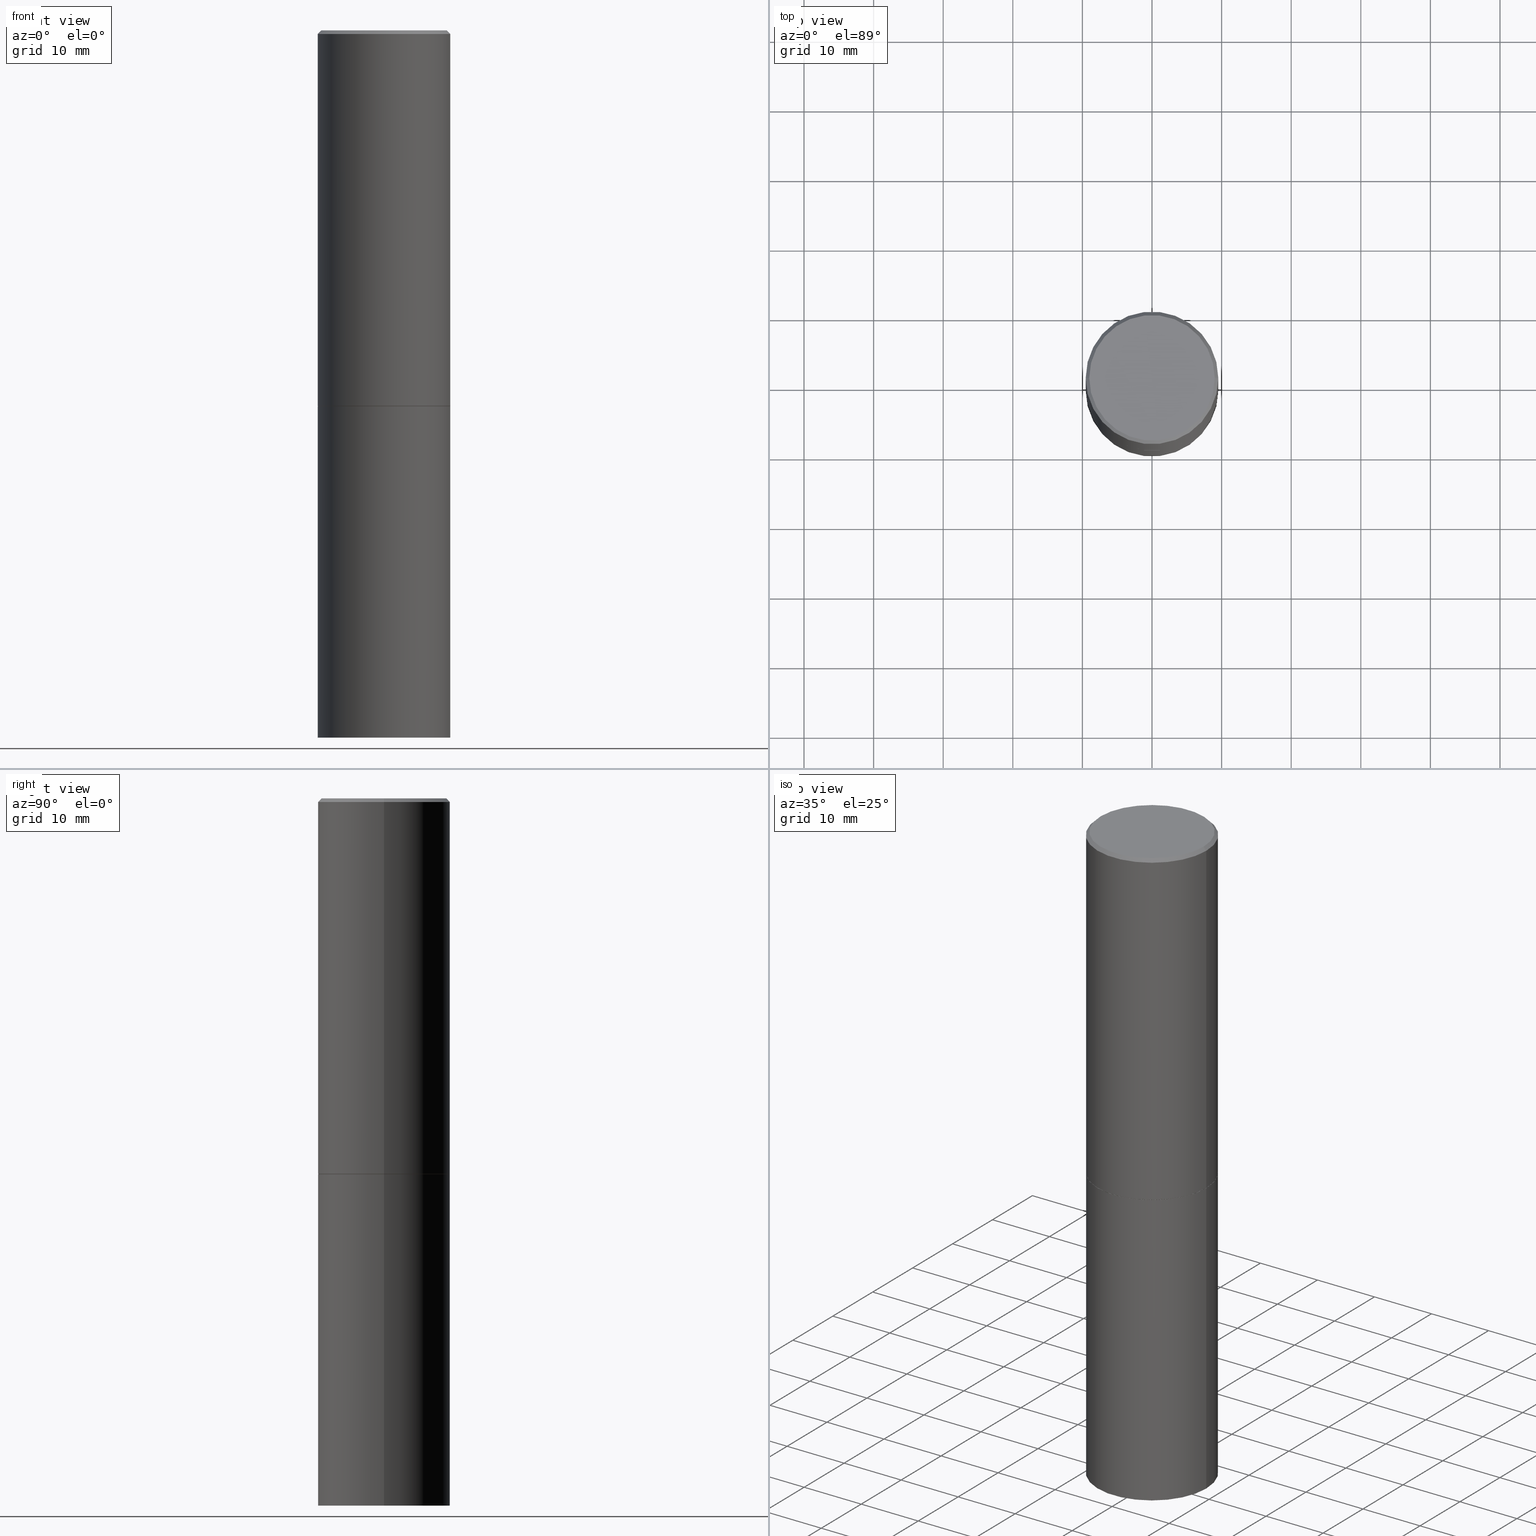
[diagram: canonical four-view strip — front | top / right | iso, engineering-drawing reading convention]
A machine part, canonical four-view strip (front | top / right | iso — engineering-drawing reading convention). The complete STEP part file that produces these views, byte-faithful:
ISO-10303-21;
HEADER;
FILE_DESCRIPTION (( 'STEP AP203' ),
    '1' );
FILE_NAME ('77247.STEP',
    '2024-02-29T17:31:24',
    ( '' ),
    ( '' ),
    'SwSTEP 2.0',
    'SolidWorks 2023',
    '' );
FILE_SCHEMA (( 'CONFIG_CONTROL_DESIGN' ));
ENDSEC;

DATA;
#1 = VECTOR ( 'NONE', #112, 39.37007874015748143 ) ;
#2 = DIRECTION ( 'NONE',  ( -2.445468806185136597E-29, 3.491481338843145583E-15, 1.000000000000000000 ) ) ;
#3 = CYLINDRICAL_SURFACE ( 'NONE', #272, 0.3750000000000000555 ) ;
#4 = EDGE_CURVE ( 'NONE', #83, #108, #168, .T. ) ;
#5 = DIMENSIONAL_EXPONENTS ( 1.000000000000000000, 0.000000000000000000, 0.000000000000000000, 0.000000000000000000, 0.000000000000000000, 0.000000000000000000, 0.000000000000000000 ) ;
#6 = SECURITY_CLASSIFICATION ( '', '', #238 ) ;
#7 = DIRECTION ( 'NONE',  ( 1.000000000000000000, -6.982962677686268288E-15, 0.000000000000000000 ) ) ;
#8 = CARTESIAN_POINT ( 'NONE',  ( -0.3750000000000000555, 2.664535259100376091E-15, -1.844600658845589598E-29 ) ) ;
#9 = ORIENTED_EDGE ( 'NONE', *, *, #135, .F. ) ;
#10 = CARTESIAN_POINT ( 'NONE',  ( 5.194175744337229665E-29, -7.415906363702840616E-15, -2.123999999999999666 ) ) ;
#11 = VECTOR ( 'NONE', #260, 39.37007874015748143 ) ;
#12 = CIRCLE ( 'NONE', #364, 0.3749999999999998335 ) ;
#13 = DIRECTION ( 'NONE',  ( -0.7071067811865459074, 2.468850131082239706E-15, -0.7071067811865492381 ) ) ;
#14 = PLANE ( 'NONE',  #223 ) ;
#15 = ORIENTED_EDGE ( 'NONE', *, *, #334, .T. ) ;
#16 = APPROVAL_DATE_TIME ( #318, #198 ) ;
#17 = FACE_OUTER_BOUND ( 'NONE', #37, .T. ) ;
#18 = ADVANCED_FACE ( 'NONE', ( #366 ), #53, .T. ) ;
#19 = ORIENTED_EDGE ( 'NONE', *, *, #361, .F. ) ;
#20 = PERSON_AND_ORGANIZATION_ROLE ( 'design_owner' ) ;
#21 = APPROVAL_PERSON_ORGANIZATION ( #348, #198, #63 ) ;
#22 = CARTESIAN_POINT ( 'NONE',  ( 9.781875224740546387E-29, -1.396592535537258233E-14, -4.000000000000000000 ) ) ;
#23 = APPROVAL ( #128, 'UNSPECIFIED' ) ;
#24 = EDGE_LOOP ( 'NONE', ( #250, #109, #173, #48 ) ) ;
#25 = EDGE_CURVE ( 'NONE', #131, #62, #186, .T. ) ;
#26 = ORIENTED_EDGE ( 'NONE', *, *, #58, .F. ) ;
#27 = CIRCLE ( 'NONE', #127, 0.3549999999999998157 ) ;
#28 = DIRECTION ( 'NONE',  ( -1.000000000000000000, 6.982962677686265922E-15, -4.876176775795935793E-29 ) ) ;
#29 = PLANE ( 'NONE',  #161 ) ;
#30 = CIRCLE ( 'NONE', #301, 0.3750000000000000555 ) ;
#31 = CC_DESIGN_PERSON_AND_ORGANIZATION_ASSIGNMENT ( #177, #124, ( #262 ) ) ;
#32 = AXIS2_PLACEMENT_3D ( 'NONE', #115, #342, #254 ) ;
#33 = DIRECTION ( 'NONE',  ( -2.445468806185136597E-29, 3.491481338843145583E-15, 1.000000000000000000 ) ) ;
#34 = CARTESIAN_POINT ( 'NONE',  ( 5.196621213143414147E-29, -7.419397845041682046E-15, -2.124999999999999556 ) ) ;
#35 = AXIS2_PLACEMENT_3D ( 'NONE', #182, #43, #119 ) ;
#36 = LINE ( 'NONE', #282, #1 ) ;
#37 = EDGE_LOOP ( 'NONE', ( #117, #101 ) ) ;
#38 = DATE_TIME_ROLE ( 'creation_date' ) ;
#39 = DIRECTION ( 'NONE',  ( 1.000000000000000000, -6.982962677686264344E-15, 0.000000000000000000 ) ) ;
#40 = LINE ( 'NONE', #148, #11 ) ;
#41 = AXIS2_PLACEMENT_3D ( 'NONE', #64, #144, #104 ) ;
#42 = PERSON_AND_ORGANIZATION_ROLE ( 'creator' ) ;
#43 = DIRECTION ( 'NONE',  ( -2.445468806185136597E-29, 3.491481338843145583E-15, 1.000000000000000000 ) ) ;
#44 = VERTEX_POINT ( 'NONE', #299 ) ;
#45 = PERSON_AND_ORGANIZATION_ROLE ( 'design_supplier' ) ;
#46 = EDGE_CURVE ( 'NONE', #142, #68, #30, .T. ) ;
#47 = APPROVAL_STATUS ( 'not_yet_approved' ) ;
#48 = ORIENTED_EDGE ( 'NONE', *, *, #288, .T. ) ;
#49 = PRODUCT_DEFINITION_SHAPE ( 'NONE', 'NONE',  #225 ) ;
#50 = VERTEX_POINT ( 'NONE', #213 ) ;
#51 = ORIENTED_EDGE ( 'NONE', *, *, #4, .T. ) ;
#52 = CC_DESIGN_PERSON_AND_ORGANIZATION_ASSIGNMENT ( #289, #42, ( #225 ) ) ;
#53 = PLANE ( 'NONE',  #57 ) ;
#54 = DIRECTION ( 'NONE',  ( 1.000000000000000000, -6.982962677686266711E-15, 0.000000000000000000 ) ) ;
#55 = ADVANCED_FACE ( 'NONE', ( #106 ), #76, .T. ) ;
#56 = DIRECTION ( 'NONE',  ( -2.445468806185136877E-29, 3.491481338843145188E-15, 1.000000000000000000 ) ) ;
#57 = AXIS2_PLACEMENT_3D ( 'NONE', #187, #158, #28 ) ;
#58 = EDGE_CURVE ( 'NONE', #131, #50, #329, .T. ) ;
#59 = DIRECTION ( 'NONE',  ( -2.445468806185136877E-29, 3.491481338843145188E-15, 1.000000000000000000 ) ) ;
#60 = DIRECTION ( 'NONE',  ( -2.445468806185136597E-29, 3.491481338843145583E-15, 1.000000000000000000 ) ) ;
#61 = LOCAL_TIME ( 12, 31, 24.00000000000000000, #118 ) ;
#62 = VERTEX_POINT ( 'NONE', #316 ) ;
#63 = APPROVAL_ROLE ( '' ) ;
#64 = CARTESIAN_POINT ( 'NONE',  ( 0.000000000000000000, 0.000000000000000000, 0.000000000000000000 ) ) ;
#65 = ORIENTED_EDGE ( 'NONE', *, *, #167, .T. ) ;
#66 = DIRECTION ( 'NONE',  ( 1.000000000000000000, 0.000000000000000000, 0.000000000000000000 ) ) ;
#67 = CARTESIAN_POINT ( 'NONE',  ( -0.3749999999999998335, 2.548781377355485141E-15, -0.02000000000000008021 ) ) ;
#68 = VERTEX_POINT ( 'NONE', #153 ) ;
#69 = AXIS2_PLACEMENT_3D ( 'NONE', #321, #73, #298 ) ;
#70 = CALENDAR_DATE ( 2024, 29, 2 ) ;
#71 = CARTESIAN_POINT ( 'NONE',  ( -0.3739999999999999991, -4.761968013298907357E-15, -2.124999999999999556 ) ) ;
#72 = COORDINATED_UNIVERSAL_TIME_OFFSET ( 5, 0, .BEHIND. ) ;
#73 = DIRECTION ( 'NONE',  ( -2.445468806185136597E-29, 3.491481338843145583E-15, 1.000000000000000000 ) ) ;
#74 = ORIENTED_EDGE ( 'NONE', *, *, #202, .T. ) ;
#75 = DIRECTION ( 'NONE',  ( -2.445468806185136597E-29, 3.491481338843145583E-15, 1.000000000000000000 ) ) ;
#76 = CYLINDRICAL_SURFACE ( 'NONE', #346, 0.3749999999999999445 ) ;
#77 = CIRCLE ( 'NONE', #279, 0.3739999999999999991 ) ;
#78 = ADVANCED_FACE ( 'NONE', ( #103 ), #347, .F. ) ;
#79 = ORIENTED_EDGE ( 'NONE', *, *, #350, .T. ) ;
#80 = PERSON ( 'UNSPECIFIED', 'UNSPECIFIED', 'UNSPECIFIED', ('UNSPECIFIED'), ('UNSPECIFIED'), ('UNSPECIFIED') ) ;
#81 = EDGE_LOOP ( 'NONE', ( #363, #300, #188, #183 ) ) ;
#82 = CC_DESIGN_PERSON_AND_ORGANIZATION_ASSIGNMENT ( #286, #20, ( #303 ) ) ;
#83 = VERTEX_POINT ( 'NONE', #201 ) ;
#84 = EDGE_CURVE ( 'NONE', #108, #83, #338, .T. ) ;
#85 = CONICAL_SURFACE ( 'NONE', #32, 0.3739999999999999991, 0.7853981633976190313 ) ;
#86 = DIRECTION ( 'NONE',  ( 1.000000000000000000, -6.982962677686265922E-15, 0.000000000000000000 ) ) ;
#87 = ADVANCED_FACE ( 'NONE', ( #319 ), #270, .T. ) ;
#88 = CARTESIAN_POINT ( 'NONE',  ( 0.3749999999999998335, -2.642516375941186451E-15, -0.02000000000000008021 ) ) ;
#89 = CONICAL_SURFACE ( 'NONE', #155, 0.3749999999999998335, 0.7853981633974459475 ) ;
#90 = FACE_OUTER_BOUND ( 'NONE', #219, .T. ) ;
#91 =( LENGTH_UNIT ( ) NAMED_UNIT ( * ) SI_UNIT ( $, .METRE. ) );
#92 = DATE_AND_TIME ( #320, #61 ) ;
#93 = VERTEX_POINT ( 'NONE', #175 ) ;
#94 = AXIS2_PLACEMENT_3D ( 'NONE', #333, #271, #132 ) ;
#95 = LOCAL_TIME ( 12, 31, 24.00000000000000000, #72 ) ;
#96 = DATE_AND_TIME ( #345, #292 ) ;
#97 = CC_DESIGN_PERSON_AND_ORGANIZATION_ASSIGNMENT ( #102, #210, ( #6 ) ) ;
#98 = ORIENTED_EDGE ( 'NONE', *, *, #365, .F. ) ;
#99 = APPROVAL_STATUS ( 'not_yet_approved' ) ;
#100 = DIRECTION ( 'NONE',  ( 1.000000000000000000, -6.982962677686266711E-15, 0.000000000000000000 ) ) ;
#101 = ORIENTED_EDGE ( 'NONE', *, *, #135, .T. ) ;
#102 = PERSON_AND_ORGANIZATION ( #80, #111 ) ;
#103 = FACE_OUTER_BOUND ( 'NONE', #273, .T. ) ;
#104 = DIRECTION ( 'NONE',  ( 1.000000000000000000, -6.982962677686266711E-15, 4.876176775795935793E-29 ) ) ;
#105 = DIRECTION ( 'NONE',  ( 1.000000000000000000, -6.982962677686266711E-15, 0.000000000000000000 ) ) ;
#106 = FACE_OUTER_BOUND ( 'NONE', #81, .T. ) ;
#107 = LOCAL_TIME ( 12, 31, 24.00000000000000000, #325 ) ;
#108 = VERTEX_POINT ( 'NONE', #172 ) ;
#109 = ORIENTED_EDGE ( 'NONE', *, *, #25, .F. ) ;
#110 = CLOSED_SHELL ( 'NONE', ( #246, #55, #313, #166, #87, #332, #341, #181 ) ) ;
#111 = ORGANIZATION ( 'UNSPECIFIED', 'UNSPECIFIED', '' ) ;
#112 = DIRECTION ( 'NONE',  ( 0.7071067811866682540, -2.468850131083521605E-15, 0.7071067811864267805 ) ) ;
#113 = FACE_OUTER_BOUND ( 'NONE', #226, .T. ) ;
#114 = DIRECTION ( 'NONE',  ( 0.7071067811865459074, -7.319954787623251312E-15, -0.7071067811865492381 ) ) ;
#115 = CARTESIAN_POINT ( 'NONE',  ( 5.196621213143414147E-29, -7.419397845041682046E-15, -2.124999999999999556 ) ) ;
#116 = APPLICATION_CONTEXT ( 'configuration controlled 3d designs of mechanical parts and assemblies' ) ;
#117 = ORIENTED_EDGE ( 'NONE', *, *, #25, .T. ) ;
#118 = COORDINATED_UNIVERSAL_TIME_OFFSET ( 5, 0, .BEHIND. ) ;
#119 = DIRECTION ( 'NONE',  ( 1.000000000000000000, -6.982962677686265922E-15, 4.876176775795935793E-29 ) ) ;
#120 = CIRCLE ( 'NONE', #217, 0.3749999999999998335 ) ;
#121 =( CONVERSION_BASED_UNIT ( 'INCH', #351 ) LENGTH_UNIT ( ) NAMED_UNIT ( #5 ) );
#122 = ADVANCED_FACE ( 'NONE', ( #266 ), #178, .T. ) ;
#123 = DIRECTION ( 'NONE',  ( -1.000000000000000000, 6.982962677686265922E-15, -4.876176775795935793E-29 ) ) ;
#124 = PERSON_AND_ORGANIZATION_ROLE ( 'creator' ) ;
#125 = CARTESIAN_POINT ( 'NONE',  ( 4.890937612370293302E-31, -6.982962677686318726E-17, -0.02000000000000008021 ) ) ;
#126 = ORIENTED_EDGE ( 'NONE', *, *, #236, .F. ) ;
#127 = AXIS2_PLACEMENT_3D ( 'NONE', #207, #290, #211 ) ;
#128 = APPROVAL_STATUS ( 'not_yet_approved' ) ;
#129 = CIRCLE ( 'NONE', #355, 0.3739999999999999991 ) ;
#130 = DIRECTION ( 'NONE',  ( 2.438088387897960049E-29, -3.491481338843145188E-15, -1.000000000000000000 ) ) ;
#131 = VERTEX_POINT ( 'NONE', #184 ) ;
#132 = DIRECTION ( 'NONE',  ( 1.000000000000000000, -6.982962677686264344E-15, 0.000000000000000000 ) ) ;
#133 = VERTEX_POINT ( 'NONE', #258 ) ;
#134 = CC_DESIGN_APPROVAL ( #242, ( #6 ) ) ;
#135 = EDGE_CURVE ( 'NONE', #62, #131, #27, .T. ) ;
#136 = EDGE_LOOP ( 'NONE', ( #9, #15, #79, #26 ) ) ;
#137 = DIRECTION ( 'NONE',  ( -2.445468806185136877E-29, 3.491481338843145188E-15, 1.000000000000000000 ) ) ;
#138 = DIRECTION ( 'NONE',  ( -2.445468806185136597E-29, 3.491481338843145583E-15, 1.000000000000000000 ) ) ;
#139 = DIRECTION ( 'NONE',  ( -2.445468806185136597E-29, 3.491481338843145583E-15, 1.000000000000000000 ) ) ;
#140 =( GEOMETRIC_REPRESENTATION_CONTEXT ( 3 ) GLOBAL_UNCERTAINTY_ASSIGNED_CONTEXT ( ( #344 ) ) GLOBAL_UNIT_ASSIGNED_CONTEXT ( ( #121, #199, #147 ) ) REPRESENTATION_CONTEXT ( 'NONE', 'WORKASPACE' ) );
#141 = DIRECTION ( 'NONE',  ( 1.000000000000000000, -6.982962677686268288E-15, 0.000000000000000000 ) ) ;
#142 = VERTEX_POINT ( 'NONE', #287 ) ;
#143 = APPROVAL_DATE_TIME ( #92, #23 ) ;
#144 = DIRECTION ( 'NONE',  ( -2.445468806185136597E-29, 3.491481338843145583E-15, 1.000000000000000000 ) ) ;
#145 = APPLICATION_CONTEXT ( 'configuration controlled 3d designs of mechanical parts and assemblies' ) ;
#146 = EDGE_CURVE ( 'NONE', #108, #133, #40, .T. ) ;
#147 =( NAMED_UNIT ( * ) SI_UNIT ( $, .STERADIAN. ) SOLID_ANGLE_UNIT ( ) );
#148 = CARTESIAN_POINT ( 'NONE',  ( 0.3749999999999999445, -2.618611004132349622E-15, 1.828566290923475642E-29 ) ) ;
#149 = APPROVAL_ROLE ( '' ) ;
#150 = DIRECTION ( 'NONE',  ( -2.445468806185136597E-29, 3.491481338843145583E-15, 1.000000000000000000 ) ) ;
#151 = APPLICATION_PROTOCOL_DEFINITION ( 'international standard', 'config_control_design', 1994, #145 ) ;
#152 = APPROVAL_ROLE ( '' ) ;
#153 = CARTESIAN_POINT ( 'NONE',  ( -0.3750000000000000555, -8.028126341106757280E-15, -4.000000000000000000 ) ) ;
#154 = EDGE_LOOP ( 'NONE', ( #179, #324, #304, #259 ) ) ;
#155 = AXIS2_PLACEMENT_3D ( 'NONE', #256, #336, #162 ) ;
#156 = ORIENTED_EDGE ( 'NONE', *, *, #46, .F. ) ;
#157 = CARTESIAN_POINT ( 'NONE',  ( -1.043851414335219820E-46, 1.490343170380447200E-32, 4.268512490100411279E-18 ) ) ;
#158 = DIRECTION ( 'NONE',  ( 2.438088387897960049E-29, -3.491481338843145188E-15, -1.000000000000000000 ) ) ;
#159 = VECTOR ( 'NONE', #13, 39.37007874015748143 ) ;
#160 = CC_DESIGN_PERSON_AND_ORGANIZATION_ASSIGNMENT ( #294, #45, ( #262 ) ) ;
#161 = AXIS2_PLACEMENT_3D ( 'NONE', #337, #340, #284 ) ;
#162 = DIRECTION ( 'NONE',  ( -1.000000000000000000, 6.982962677686265922E-15, 0.000000000000000000 ) ) ;
#163 = LINE ( 'NONE', #281, #253 ) ;
#164 = CC_DESIGN_DATE_AND_TIME_ASSIGNMENT ( #180, #297, ( #6 ) ) ;
#165 = CARTESIAN_POINT ( 'NONE',  ( 4.890937612370293302E-31, -6.982962677686318726E-17, -0.02000000000000008021 ) ) ;
#166 = ADVANCED_FACE ( 'NONE', ( #243 ), #241, .T. ) ;
#167 = EDGE_CURVE ( 'NONE', #358, #83, #326, .T. ) ;
#168 = CIRCLE ( 'NONE', #94, 0.3750000000000001665 ) ;
#169 = AXIS2_PLACEMENT_3D ( 'NONE', #170, #265, #66 ) ;
#170 = CARTESIAN_POINT ( 'NONE',  ( 0.000000000000000000, 0.000000000000000000, 0.000000000000000000 ) ) ;
#171 = DATE_AND_TIME ( #70, #95 ) ;
#172 = CARTESIAN_POINT ( 'NONE',  ( 0.3750000000000001665, -1.003451736783519063E-14, -2.123999999999999666 ) ) ;
#173 = ORIENTED_EDGE ( 'NONE', *, *, #58, .T. ) ;
#174 = EDGE_CURVE ( 'NONE', #358, #93, #77, .T. ) ;
#175 = CARTESIAN_POINT ( 'NONE',  ( 0.3739999999999999991, -1.003102588649634605E-14, -2.124999999999999556 ) ) ;
#176 = AXIS2_PLACEMENT_3D ( 'NONE', #125, #295, #357 ) ;
#177 = PERSON_AND_ORGANIZATION ( #80, #111 ) ;
#178 = CYLINDRICAL_SURFACE ( 'NONE', #35, 0.3750000000000000555 ) ;
#179 = ORIENTED_EDGE ( 'NONE', *, *, #46, .T. ) ;
#180 = DATE_AND_TIME ( #200, #107 ) ;
#181 = ADVANCED_FACE ( 'NONE', ( #17 ), #14, .F. ) ;
#182 = CARTESIAN_POINT ( 'NONE',  ( 0.000000000000000000, 0.000000000000000000, 0.000000000000000000 ) ) ;
#183 = ORIENTED_EDGE ( 'NONE', *, *, #146, .F. ) ;
#184 = CARTESIAN_POINT ( 'NONE',  ( -0.3549999999999998157, 2.513866563967054675E-15, 4.268512490082953109E-18 ) ) ;
#185 = DIRECTION ( 'NONE',  ( -2.445468806185136597E-29, 3.491481338843145583E-15, 1.000000000000000000 ) ) ;
#186 = CIRCLE ( 'NONE', #308, 0.3549999999999998157 ) ;
#187 = CARTESIAN_POINT ( 'NONE',  ( 2.618611004132448230E-15, 0.3749999999999861222, -4.000000000000000888 ) ) ;
#188 = ORIENTED_EDGE ( 'NONE', *, *, #350, .F. ) ;
#189 = ADVANCED_BREP_SHAPE_REPRESENTATION ( '77247', ( #227, #353, #169 ), #140 ) ;
#190 = DIRECTION ( 'NONE',  ( 1.000000000000000000, -6.982962677686266711E-15, 4.876231632511990425E-29 ) ) ;
#191 = APPROVAL_PERSON_ORGANIZATION ( #228, #242, #152 ) ;
#192 = LINE ( 'NONE', #8, #335 ) ;
#193 = LINE ( 'NONE', #88, #209 ) ;
#194 = EDGE_CURVE ( 'NONE', #68, #142, #330, .T. ) ;
#195 = CARTESIAN_POINT ( 'NONE',  ( -0.3739999999999999991, -4.756669558950685744E-15, -2.124999999999999556 ) ) ;
#196 = AXIS2_PLACEMENT_3D ( 'NONE', #349, #130, #123 ) ;
#197 = CARTESIAN_POINT ( 'NONE',  ( 5.196621213143415268E-29, -7.419397845041683624E-15, -2.125000000000000000 ) ) ;
#198 = APPROVAL ( #99, 'UNSPECIFIED' ) ;
#199 =( NAMED_UNIT ( * ) PLANE_ANGLE_UNIT ( ) SI_UNIT ( $, .RADIAN. ) );
#200 = CALENDAR_DATE ( 2024, 29, 2 ) ;
#201 = CARTESIAN_POINT ( 'NONE',  ( -0.3750000000000001110, -1.078332736139473696E-15, -2.123999999999999666 ) ) ;
#202 = EDGE_CURVE ( 'NONE', #240, #44, #248, .T. ) ;
#203 = ORIENTED_EDGE ( 'NONE', *, *, #288, .F. ) ;
#204 = CALENDAR_DATE ( 2024, 29, 2 ) ;
#205 = ORIENTED_EDGE ( 'NONE', *, *, #307, .T. ) ;
#206 = PERSON_AND_ORGANIZATION ( #80, #111 ) ;
#207 = CARTESIAN_POINT ( 'NONE',  ( -1.043851414335219820E-46, 1.490343170380447200E-32, 4.268512490100411279E-18 ) ) ;
#208 = EDGE_LOOP ( 'NONE', ( #247, #293, #356, #306 ) ) ;
#209 = VECTOR ( 'NONE', #114, 39.37007874015748143 ) ;
#210 = PERSON_AND_ORGANIZATION_ROLE ( 'classification_officer' ) ;
#211 = DIRECTION ( 'NONE',  ( 1.000000000000000000, -6.982962677686266711E-15, 4.876231632511990425E-29 ) ) ;
#212 = DIRECTION ( 'NONE',  ( -0.7071067811866682540, 7.493145998870789611E-15, 0.7071067811864267805 ) ) ;
#213 = CARTESIAN_POINT ( 'NONE',  ( -0.3749999999999998335, 2.548781377355485141E-15, -0.02000000000000008021 ) ) ;
#214 = APPROVAL_DATE_TIME ( #96, #242 ) ;
#215 = DIRECTION ( 'NONE',  ( 1.000000000000000000, -6.982962677686266711E-15, 4.876176775795935793E-29 ) ) ;
#216 = VECTOR ( 'NONE', #212, 39.37007874015748143 ) ;
#217 = AXIS2_PLACEMENT_3D ( 'NONE', #165, #252, #86 ) ;
#218 = ORIENTED_EDGE ( 'NONE', *, *, #4, .F. ) ;
#219 = EDGE_LOOP ( 'NONE', ( #244, #65, #268, #19 ) ) ;
#220 = CC_DESIGN_APPROVAL ( #198, ( #225 ) ) ;
#221 = FACE_OUTER_BOUND ( 'NONE', #136, .T. ) ;
#222 = FACE_OUTER_BOUND ( 'NONE', #154, .T. ) ;
#223 = AXIS2_PLACEMENT_3D ( 'NONE', #233, #327, #235 ) ;
#224 = LOCAL_TIME ( 12, 31, 24.00000000000000000, #263 ) ;
#225 = PRODUCT_DEFINITION ( 'UNKNOWN', '', #262, #283 ) ;
#226 = EDGE_LOOP ( 'NONE', ( #275, #317, #296, #218 ) ) ;
#227 = MANIFOLD_SOLID_BREP ( 'Body-Move/Copy2[1]', #322 ) ;
#228 = PERSON_AND_ORGANIZATION ( #80, #111 ) ;
#229 = DIRECTION ( 'NONE',  ( -2.445468806185136597E-29, 3.491481338843145583E-15, 1.000000000000000000 ) ) ;
#230 = AXIS2_PLACEMENT_3D ( 'NONE', #311, #60, #7 ) ;
#231 = EDGE_LOOP ( 'NONE', ( #98, #257 ) ) ;
#232 = APPLICATION_PROTOCOL_DEFINITION ( 'international standard', 'config_control_design', 1994, #116 ) ;
#233 = CARTESIAN_POINT ( 'NONE',  ( 2.478951750578623420E-15, 0.3549999999999998157, -1.237341619044265835E-15 ) ) ;
#234 = MECHANICAL_CONTEXT ( 'NONE', #116, 'mechanical' ) ;
#235 = DIRECTION ( 'NONE',  ( -1.000000000000000000, 6.982962677686265922E-15, -4.876176775795935793E-29 ) ) ;
#236 = EDGE_CURVE ( 'NONE', #83, #50, #274, .T. ) ;
#237 = EDGE_LOOP ( 'NONE', ( #126, #51, #315, #203 ) ) ;
#238 = SECURITY_CLASSIFICATION_LEVEL ( 'unclassified' ) ;
#239 = DIRECTION ( 'NONE',  ( 1.000000000000000000, -6.982962677686268288E-15, 0.000000000000000000 ) ) ;
#240 = VERTEX_POINT ( 'NONE', #343 ) ;
#241 = CONICAL_SURFACE ( 'NONE', #176, 0.3749999999999998335, 0.7853981633974459475 ) ;
#242 = APPROVAL ( #47, 'UNSPECIFIED' ) ;
#243 = FACE_OUTER_BOUND ( 'NONE', #24, .T. ) ;
#244 = ORIENTED_EDGE ( 'NONE', *, *, #365, .T. ) ;
#245 = CARTESIAN_POINT ( 'NONE',  ( 0.000000000000000000, 0.000000000000000000, 0.000000000000000000 ) ) ;
#246 = ADVANCED_FACE ( 'NONE', ( #90 ), #85, .T. ) ;
#247 = ORIENTED_EDGE ( 'NONE', *, *, #276, .F. ) ;
#248 = CIRCLE ( 'NONE', #69, 0.3750000000000000555 ) ;
#249 = CARTESIAN_POINT ( 'NONE',  ( -0.3749999999999999445, 2.664535259100375303E-15, -1.844600658845589318E-29 ) ) ;
#250 = ORIENTED_EDGE ( 'NONE', *, *, #334, .F. ) ;
#251 = ADVANCED_FACE ( 'NONE', ( #222 ), #3, .T. ) ;
#252 = DIRECTION ( 'NONE',  ( -2.445468806185136597E-29, 3.491481338843145583E-15, 1.000000000000000000 ) ) ;
#253 = VECTOR ( 'NONE', #137, 39.37007874015748143 ) ;
#254 = DIRECTION ( 'NONE',  ( 1.000000000000000000, -6.982962677686268288E-15, 0.000000000000000000 ) ) ;
#255 = DIRECTION ( 'NONE',  ( 1.000000000000000000, -6.982962677686265922E-15, 0.000000000000000000 ) ) ;
#256 = CARTESIAN_POINT ( 'NONE',  ( 4.890937612370293302E-31, -6.982962677686318726E-17, -0.02000000000000008021 ) ) ;
#257 = ORIENTED_EDGE ( 'NONE', *, *, #174, .F. ) ;
#258 = CARTESIAN_POINT ( 'NONE',  ( 0.3749999999999998335, -2.642516375941186451E-15, -0.02000000000000008021 ) ) ;
#259 = ORIENTED_EDGE ( 'NONE', *, *, #285, .F. ) ;
#260 = DIRECTION ( 'NONE',  ( -2.445468806185136877E-29, 3.491481338843145188E-15, 1.000000000000000000 ) ) ;
#261 = CONICAL_SURFACE ( 'NONE', #230, 0.3739999999999999991, 0.7853981633976190313 ) ;
#262 = PRODUCT_DEFINITION_FORMATION_WITH_SPECIFIED_SOURCE ( 'ANY', '', #303, .NOT_KNOWN. ) ;
#263 = COORDINATED_UNIVERSAL_TIME_OFFSET ( 5, 0, .BEHIND. ) ;
#264 = CARTESIAN_POINT ( 'NONE',  ( 5.196621213143414147E-29, -7.419397845041682046E-15, -2.124999999999999556 ) ) ;
#265 = DIRECTION ( 'NONE',  ( 0.000000000000000000, 0.000000000000000000, 1.000000000000000000 ) ) ;
#266 = FACE_OUTER_BOUND ( 'NONE', #208, .T. ) ;
#267 = CC_DESIGN_DATE_AND_TIME_ASSIGNMENT ( #171, #38, ( #225 ) ) ;
#268 = ORIENTED_EDGE ( 'NONE', *, *, #84, .F. ) ;
#269 = COORDINATED_UNIVERSAL_TIME_OFFSET ( 5, 0, .BEHIND. ) ;
#270 = CYLINDRICAL_SURFACE ( 'NONE', #41, 0.3749999999999999445 ) ;
#271 = DIRECTION ( 'NONE',  ( -2.445468806185136597E-29, 3.491481338843145583E-15, 1.000000000000000000 ) ) ;
#272 = AXIS2_PLACEMENT_3D ( 'NONE', #312, #2, #310 ) ;
#273 = EDGE_LOOP ( 'NONE', ( #74, #205 ) ) ;
#274 = LINE ( 'NONE', #249, #291 ) ;
#275 = ORIENTED_EDGE ( 'NONE', *, *, #167, .F. ) ;
#276 = EDGE_CURVE ( 'NONE', #68, #44, #192, .T. ) ;
#277 = DIRECTION ( 'NONE',  ( -2.445468806185136597E-29, 3.491481338843145583E-15, 1.000000000000000000 ) ) ;
#278 = FACE_OUTER_BOUND ( 'NONE', #231, .T. ) ;
#279 = AXIS2_PLACEMENT_3D ( 'NONE', #264, #229, #239 ) ;
#280 = AXIS2_PLACEMENT_3D ( 'NONE', #197, #138, #54 ) ;
#281 = CARTESIAN_POINT ( 'NONE',  ( 0.3750000000000000555, -2.618611004132350016E-15, 1.828566290923476203E-29 ) ) ;
#282 = CARTESIAN_POINT ( 'NONE',  ( 0.3739999999999999991, -1.003102588649634605E-14, -2.124999999999999556 ) ) ;
#283 = DESIGN_CONTEXT ( 'detailed design', #145, 'design' ) ;
#284 = DIRECTION ( 'NONE',  ( 1.000000000000000000, -6.982962677686265922E-15, 4.876176775795935793E-29 ) ) ;
#285 = EDGE_CURVE ( 'NONE', #142, #240, #163, .T. ) ;
#286 = PERSON_AND_ORGANIZATION ( #80, #111 ) ;
#287 = CARTESIAN_POINT ( 'NONE',  ( 0.3750000000000000555, -1.658453635950493392E-14, -4.000000000000000000 ) ) ;
#288 = EDGE_CURVE ( 'NONE', #50, #133, #12, .T. ) ;
#289 = PERSON_AND_ORGANIZATION ( #80, #111 ) ;
#290 = DIRECTION ( 'NONE',  ( -2.445468806185136597E-29, 3.491481338843145583E-15, 1.000000000000000000 ) ) ;
#291 = VECTOR ( 'NONE', #56, 39.37007874015748143 ) ;
#292 = LOCAL_TIME ( 12, 31, 24.00000000000000000, #269 ) ;
#293 = ORIENTED_EDGE ( 'NONE', *, *, #194, .T. ) ;
#294 = PERSON_AND_ORGANIZATION ( #80, #111 ) ;
#295 = DIRECTION ( 'NONE',  ( 2.445468806185136597E-29, -3.491481338843145583E-15, -1.000000000000000000 ) ) ;
#296 = ORIENTED_EDGE ( 'NONE', *, *, #361, .T. ) ;
#297 = DATE_TIME_ROLE ( 'classification_date' ) ;
#298 = DIRECTION ( 'NONE',  ( 1.000000000000000000, -6.982962677686266711E-15, 0.000000000000000000 ) ) ;
#299 = CARTESIAN_POINT ( 'NONE',  ( -0.3750000000000000555, -8.028126341106757280E-15, -2.125000000000000000 ) ) ;
#300 = ORIENTED_EDGE ( 'NONE', *, *, #236, .T. ) ;
#301 = AXIS2_PLACEMENT_3D ( 'NONE', #22, #185, #105 ) ;
#302 = CC_DESIGN_APPROVAL ( #23, ( #262 ) ) ;
#303 = PRODUCT ( '77247', '77247', '', ( #234 ) ) ;
#304 = ORIENTED_EDGE ( 'NONE', *, *, #202, .F. ) ;
#305 = SHAPE_DEFINITION_REPRESENTATION ( #49, #189 ) ;
#306 = ORIENTED_EDGE ( 'NONE', *, *, #307, .F. ) ;
#307 = EDGE_CURVE ( 'NONE', #44, #240, #323, .T. ) ;
#308 = AXIS2_PLACEMENT_3D ( 'NONE', #157, #277, #190 ) ;
#309 = CARTESIAN_POINT ( 'NONE',  ( 4.890937612370293302E-31, -6.982962677686318726E-17, -0.02000000000000008021 ) ) ;
#310 = DIRECTION ( 'NONE',  ( 1.000000000000000000, -6.982962677686265922E-15, 4.876176775795935793E-29 ) ) ;
#311 = CARTESIAN_POINT ( 'NONE',  ( 5.196621213143414147E-29, -7.419397845041682046E-15, -2.124999999999999556 ) ) ;
#312 = CARTESIAN_POINT ( 'NONE',  ( 0.000000000000000000, 0.000000000000000000, 0.000000000000000000 ) ) ;
#313 = ADVANCED_FACE ( 'NONE', ( #221 ), #89, .T. ) ;
#314 = APPROVAL_PERSON_ORGANIZATION ( #206, #23, #149 ) ;
#315 = ORIENTED_EDGE ( 'NONE', *, *, #146, .T. ) ;
#316 = CARTESIAN_POINT ( 'NONE',  ( 0.3549999999999998157, -2.538996582575039470E-15, 4.268512490117958041E-18 ) ) ;
#317 = ORIENTED_EDGE ( 'NONE', *, *, #174, .T. ) ;
#318 = DATE_AND_TIME ( #204, #224 ) ;
#319 = FACE_OUTER_BOUND ( 'NONE', #237, .T. ) ;
#320 = CALENDAR_DATE ( 2024, 29, 2 ) ;
#321 = CARTESIAN_POINT ( 'NONE',  ( 5.196621213143415268E-29, -7.419397845041683624E-15, -2.125000000000000000 ) ) ;
#322 = CLOSED_SHELL ( 'NONE', ( #251, #18, #78, #122 ) ) ;
#323 = CIRCLE ( 'NONE', #280, 0.3750000000000000555 ) ;
#324 = ORIENTED_EDGE ( 'NONE', *, *, #276, .T. ) ;
#325 = COORDINATED_UNIVERSAL_TIME_OFFSET ( 5, 0, .BEHIND. ) ;
#326 = LINE ( 'NONE', #71, #216 ) ;
#327 = DIRECTION ( 'NONE',  ( 2.438088387897960049E-29, -3.491481338843145188E-15, -1.000000000000000000 ) ) ;
#328 = ORIENTED_EDGE ( 'NONE', *, *, #194, .F. ) ;
#329 = LINE ( 'NONE', #67, #159 ) ;
#330 = CIRCLE ( 'NONE', #362, 0.3750000000000000555 ) ;
#331 = EDGE_LOOP ( 'NONE', ( #156, #328 ) ) ;
#332 = ADVANCED_FACE ( 'NONE', ( #113 ), #261, .T. ) ;
#333 = CARTESIAN_POINT ( 'NONE',  ( 5.194175744337229665E-29, -7.415906363702840616E-15, -2.123999999999999666 ) ) ;
#334 = EDGE_CURVE ( 'NONE', #62, #133, #193, .T. ) ;
#335 = VECTOR ( 'NONE', #59, 39.37007874015748143 ) ;
#336 = DIRECTION ( 'NONE',  ( 2.445468806185136597E-29, -3.491481338843145583E-15, -1.000000000000000000 ) ) ;
#337 = CARTESIAN_POINT ( 'NONE',  ( 5.196621213143415268E-29, -7.419397845041683624E-15, -2.125000000000000000 ) ) ;
#338 = CIRCLE ( 'NONE', #354, 0.3750000000000001665 ) ;
#339 = CC_DESIGN_SECURITY_CLASSIFICATION ( #6, ( #262 ) ) ;
#340 = DIRECTION ( 'NONE',  ( -2.438088387897960049E-29, 3.491481338843145188E-15, 1.000000000000000000 ) ) ;
#341 = ADVANCED_FACE ( 'NONE', ( #278 ), #29, .F. ) ;
#342 = DIRECTION ( 'NONE',  ( -2.445468806185136597E-29, 3.491481338843145583E-15, 1.000000000000000000 ) ) ;
#343 = CARTESIAN_POINT ( 'NONE',  ( 0.3750000000000000555, -1.003800884917403364E-14, -2.125000000000000000 ) ) ;
#344 = UNCERTAINTY_MEASURE_WITH_UNIT (LENGTH_MEASURE( 1.000000000000000082E-05 ), #121, 'distance_accuracy_value', 'NONE');
#345 = CALENDAR_DATE ( 2024, 29, 2 ) ;
#346 = AXIS2_PLACEMENT_3D ( 'NONE', #245, #360, #215 ) ;
#347 = PLANE ( 'NONE',  #196 ) ;
#348 = PERSON_AND_ORGANIZATION ( #80, #111 ) ;
#349 = CARTESIAN_POINT ( 'NONE',  ( 2.618611004132402081E-15, 0.3749999999999925615, -2.125000000000001332 ) ) ;
#350 = EDGE_CURVE ( 'NONE', #133, #50, #120, .T. ) ;
#351 = LENGTH_MEASURE_WITH_UNIT ( LENGTH_MEASURE( 0.02539999999999999897 ), #91 );
#352 = CARTESIAN_POINT ( 'NONE',  ( 9.781875224740546387E-29, -1.396592535537258233E-14, -4.000000000000000000 ) ) ;
#353 = MANIFOLD_SOLID_BREP ( 'Body-Move/Copy2[2]', #110 ) ;
#354 = AXIS2_PLACEMENT_3D ( 'NONE', #10, #150, #39 ) ;
#355 = AXIS2_PLACEMENT_3D ( 'NONE', #34, #139, #141 ) ;
#356 = ORIENTED_EDGE ( 'NONE', *, *, #285, .T. ) ;
#357 = DIRECTION ( 'NONE',  ( -1.000000000000000000, 6.982962677686265922E-15, 0.000000000000000000 ) ) ;
#358 = VERTEX_POINT ( 'NONE', #195 ) ;
#359 = PRODUCT_RELATED_PRODUCT_CATEGORY ( 'detail', '', ( #303 ) ) ;
#360 = DIRECTION ( 'NONE',  ( -2.445468806185136597E-29, 3.491481338843145583E-15, 1.000000000000000000 ) ) ;
#361 = EDGE_CURVE ( 'NONE', #93, #108, #36, .T. ) ;
#362 = AXIS2_PLACEMENT_3D ( 'NONE', #352, #75, #100 ) ;
#363 = ORIENTED_EDGE ( 'NONE', *, *, #84, .T. ) ;
#364 = AXIS2_PLACEMENT_3D ( 'NONE', #309, #33, #255 ) ;
#365 = EDGE_CURVE ( 'NONE', #93, #358, #129, .T. ) ;
#366 = FACE_OUTER_BOUND ( 'NONE', #331, .T. ) ;
ENDSEC;
END-ISO-10303-21;
